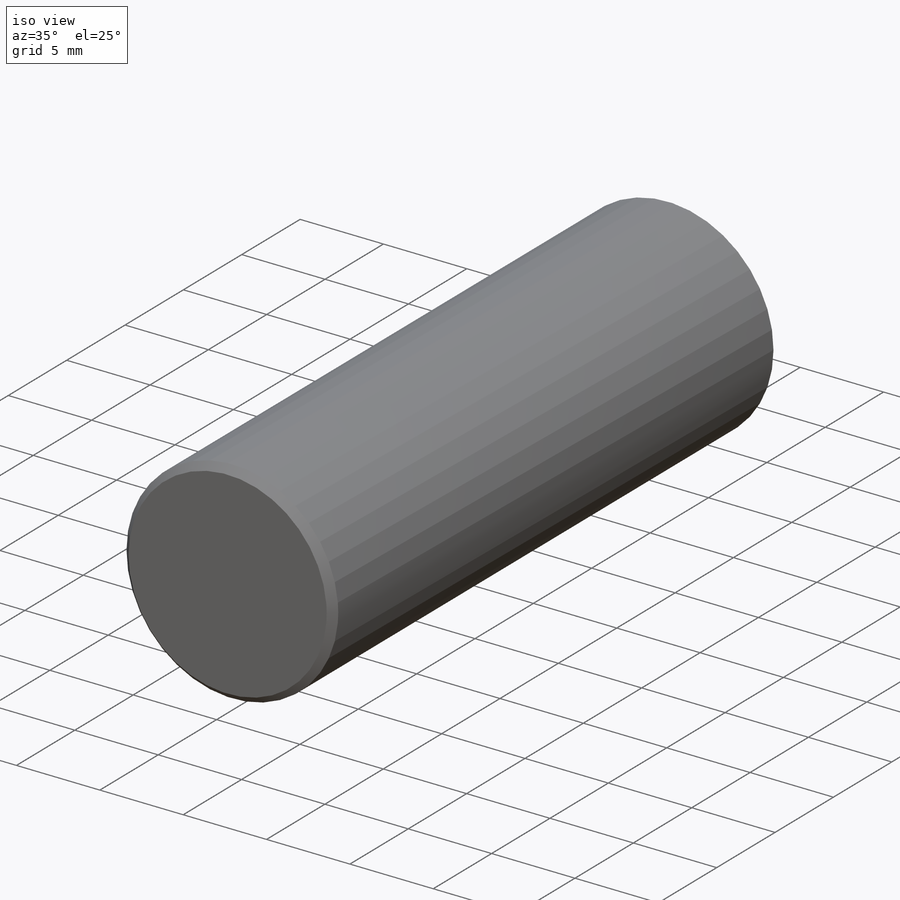
[diagram: iso view]
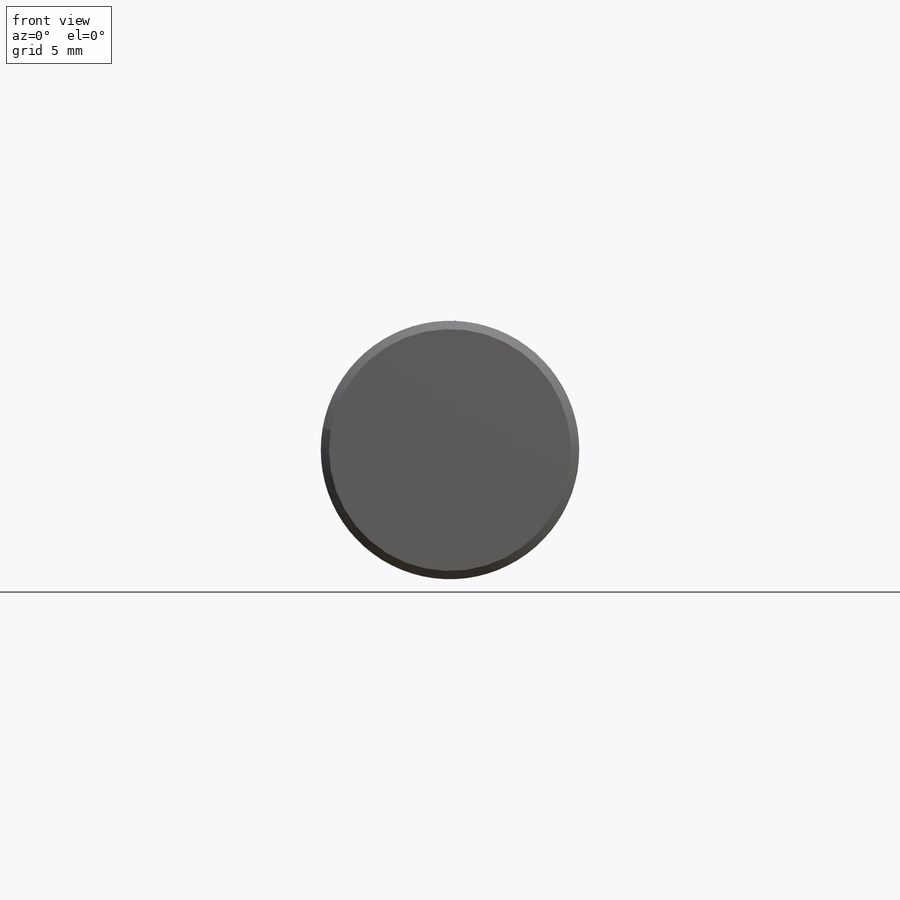
[diagram: front view]
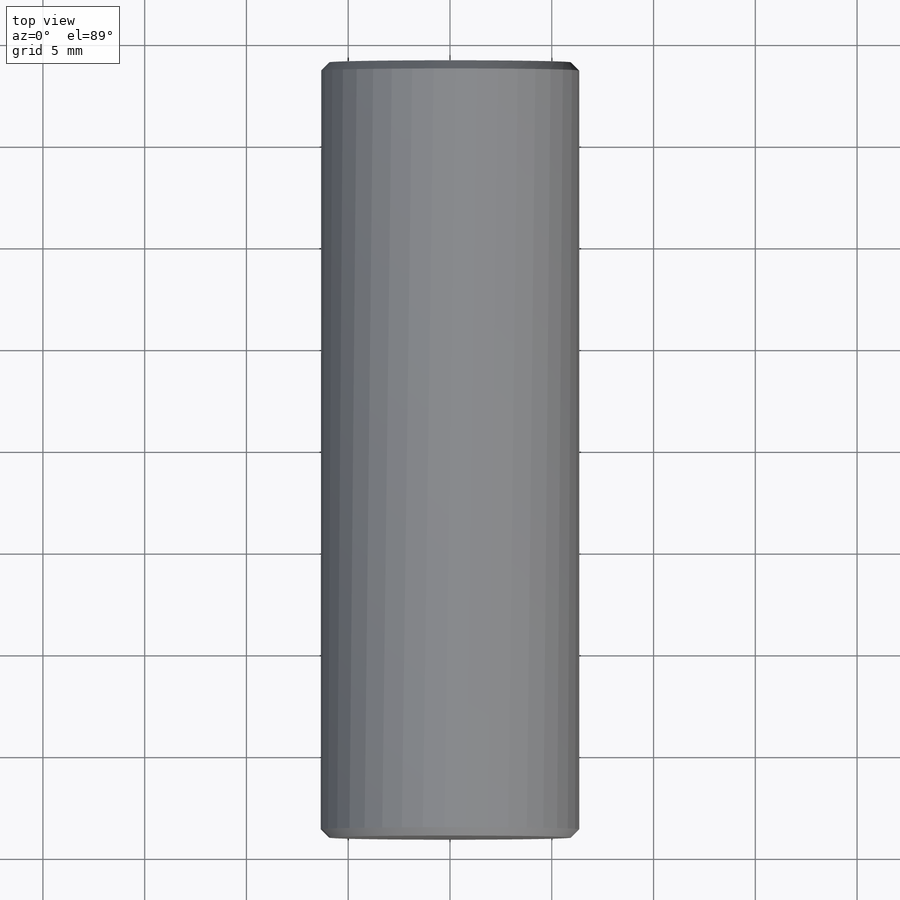
[diagram: top view]
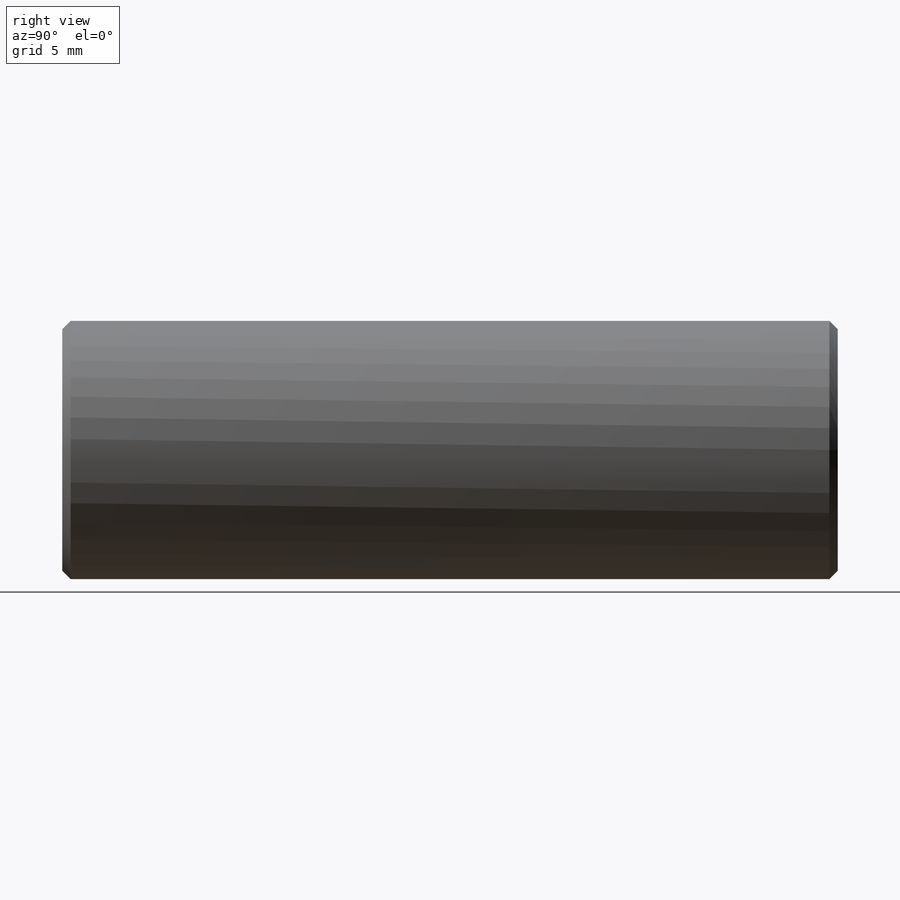
[diagram: right view]
SOLIDWORKS PART (.sldprt)
format: sldprt  version: not decoded by parser v0  size: 273,408 bytes
history: native  units: mm
features: sketch x6, plane x4, cut_extrude x4, thread x2, material x1, extrude x1, chamfer x1, cut_revolve x1, mirror x1 + 2 further entries (+10 scaffold rows collapsed; 1 parser-record rows omitted)
feature tree (34):
  scaffold x10  (default folders/planes/origin — collapsed)
  material  "Stainless Steel 440C 58Rc"
  plane  "Plane X-Y"
  plane  "Plane X-Z"
  plane  "Plane Y-Z"
  "Axis - Y"
  "Axis - Z"
  sketch  "Sketch1"  dims[D1=12.7mm]
  extrude  "Extrude1"  Depth=38.1mm
  chamfer  "Chamfer1"  Distance=0.4064mm Angle=45deg
  sketch  "Sketch2"  dims[D1=8.4836mm]
  cut_extrude  "Truncated"  [1 undecoded]
  sketch  "Sketch3"  dims[D1=7.9375mm D2=34.925mm]
  cut_extrude  "Recessed"  Depth=0.127mm
  sketch  "Sketch4"  dims[D1=4.953mm D2=25.4mm]
  cut_extrude  "Threaded"  [1 undecoded]
  thread  "Cosmetic Thread1"  Diameter=6.223mm  [1 undecoded]
  thread  "Cosmetic Thread2"  Diameter=6.223mm  [1 undecoded]
  sketch  "Sketch5"  dims[D1=12.7mm D2=3.9116mm D3=7.1374mm D4=3.5052mm]
  parser-record x1  (decoder bookkeeping rows leaked as tree rows — omitted from the tree; the rows remain in map.json)
  cut_revolve  "CtBored Hole Cut-Revolve1"  Angle=360deg
  mirror  "CtBored Hole Mirror1"
  plane  "Bottom Plane"
  sketch  "Sketch6"  dims[D1=~3.96875mm D2=25.4mm]
  cut_extrude  "Blind Holes"  Depth=6.35mm
decode coverage: 13 of 16 modeling features carry decoded parameters; 2 rows unclassified (native names shown)
note: ~ marks probable driven/reference dimensions
note: 4 parameter values undecoded
note: suppression state not decoded; provenance and decode notes live in map.json
